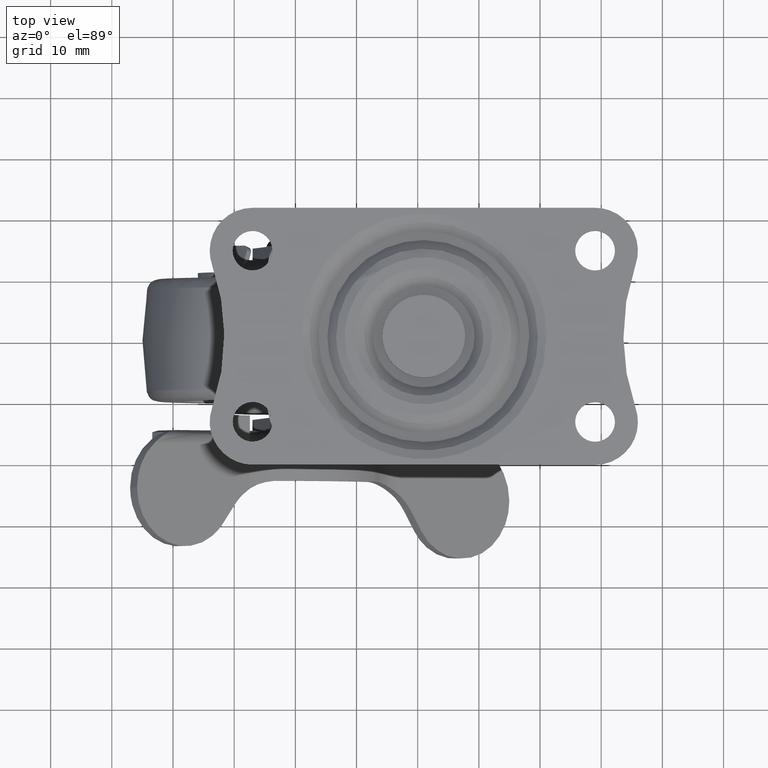
[diagram: clean part render]
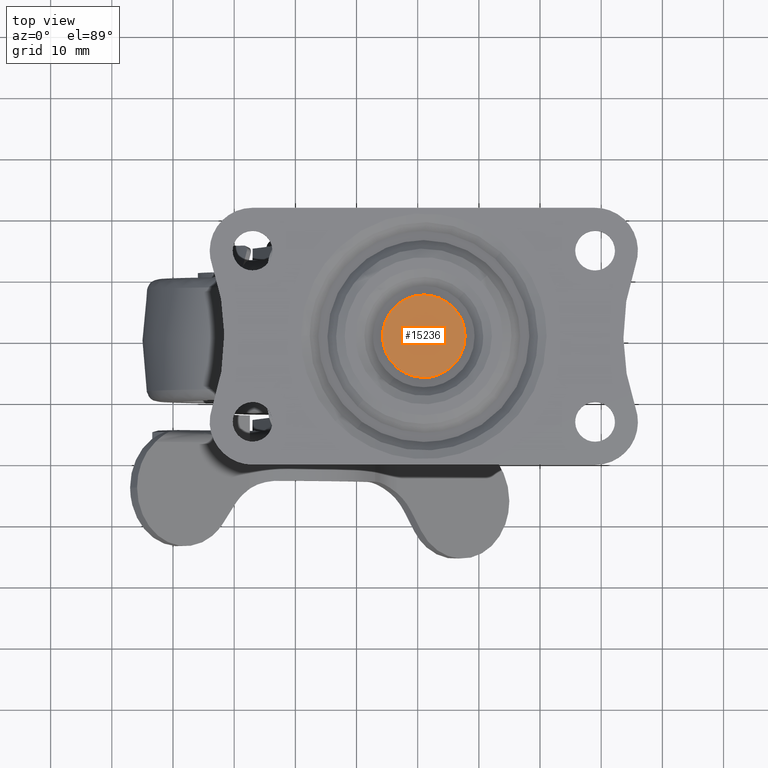
[diagram: same view with one face highlighted and labeled with its STEP entity id]
A machine part, top view. The second image highlights one B-rep face of the part: STEP entity #15236.
In plain terms, the highlighted face is a freeform B-spline surface patch.
Its self-contained STEP definition (entity closure, byte-faithful):
#14420=CARTESIAN_POINT('',(16.641240928317490,-5.154000789699762,40.0));
#14421=VERTEX_POINT('',#14420);
#14427=CARTESIAN_POINT('',(14.250000000000000,1.421085E-014,40.0));
#14428=VERTEX_POINT('',#14427);
#14429=CARTESIAN_POINT('',(16.641240928317490,-5.154000789699762,40.0));
#14430=CARTESIAN_POINT('',(16.314710635751830,-4.877902030336344,40.000000000000028));
#14431=CARTESIAN_POINT('',(15.692929208646630,-4.241430542744241,39.999999999999922));
#14432=CARTESIAN_POINT('',(14.872167660753220,-2.980583319897633,40.000000000000178));
#14433=CARTESIAN_POINT('',(14.359073330951690,-1.527223232333330,39.999999999999851));
#14434=CARTESIAN_POINT('',(14.249983259429090,-0.458147175200306,40.000000000000092));
#14435=CARTESIAN_POINT('',(14.250000000000000,1.421085E-014,40.0));
#14436=B_SPLINE_CURVE_WITH_KNOTS('',3,(#14429,#14430,#14431,#14432,#14433,#14434,#14435),.UNSPECIFIED.,.F.,.U.,(4,1,1,1,4),(0.000000045151192,1.282845981109632,2.657350218214928,4.489975278053346,5.864456024236506),.UNSPECIFIED.);
#14437=EDGE_CURVE('',#14421,#14428,#14436,.T.);
#14439=CARTESIAN_POINT('',(21.000001437793891,6.749999999999861,40.0));
#14440=VERTEX_POINT('',#14439);
#14441=CARTESIAN_POINT('',(14.250000000000000,1.421085E-014,40.0));
#14442=CARTESIAN_POINT('',(14.249616669910051,0.690350903864617,39.999999999999957));
#14443=CARTESIAN_POINT('',(14.399597457560350,1.656519912955270,40.000000000000149));
#14444=CARTESIAN_POINT('',(14.917367550844711,2.998660583675698,40.000000000000043));
#14445=CARTESIAN_POINT('',(15.567072480111500,4.098095905512048,39.999999999999787));
#14446=CARTESIAN_POINT('',(16.481282655039600,5.070105383113908,40.000000000000149));
#14447=CARTESIAN_POINT('',(17.491069384424069,5.799893395799360,39.999999999999979));
#14448=CARTESIAN_POINT('',(18.505995946396769,6.310807069625708,40.000000000000142));
#14449=CARTESIAN_POINT('',(19.702275084183320,6.665666082290328,39.999999999999929));
#14450=CARTESIAN_POINT('',(20.558214249690089,6.750057949887117,40.0));
#14451=CARTESIAN_POINT('',(21.000001437793891,6.749999999999861,40.0));
#14452=B_SPLINE_CURVE_WITH_KNOTS('',3,(#14441,#14442,#14443,#14444,#14445,#14446,#14447,#14448,#14449,#14450,#14451),.UNSPECIFIED.,.F.,.U.,(4,1,1,1,1,1,1,1,4),(0.000000137733107,2.070884080157674,2.899246179359994,4.307478157390871,5.881304572641057,6.875333967272873,8.035043685190678,9.277585008136056,10.602942544783330),.UNSPECIFIED.);
#14453=EDGE_CURVE('',#14428,#14440,#14452,.T.);
#14455=CARTESIAN_POINT('',(27.750000000000000,1.421085E-014,40.0));
#14456=VERTEX_POINT('',#14455);
#14457=CARTESIAN_POINT('',(21.000001437793891,6.749999999999861,40.0));
#14458=CARTESIAN_POINT('',(21.579853605416439,6.750164192111178,40.000000000000050));
#14459=CARTESIAN_POINT('',(22.739498571808770,6.599690379410438,40.0));
#14460=CARTESIAN_POINT('',(24.209337552802200,6.001414687995613,40.000000000000007));
#14461=CARTESIAN_POINT('',(25.461593527247459,5.130861648630334,40.000000000000057));
#14462=CARTESIAN_POINT('',(26.375757143743709,4.158833561313298,39.999999999999893));
#14463=CARTESIAN_POINT('',(27.029876288580819,3.097027253083099,40.000000000000107));
#14464=CARTESIAN_POINT('',(27.581003637486660,1.766936410963549,39.999999999999822));
#14465=CARTESIAN_POINT('',(27.750395738157660,0.717963652958597,39.999999999999957));
#14466=CARTESIAN_POINT('',(27.750000000000000,1.421085E-014,40.0));
#14467=B_SPLINE_CURVE_WITH_KNOTS('',3,(#14457,#14458,#14459,#14460,#14461,#14462,#14463,#14464,#14465,#14466),.UNSPECIFIED.,.F.,.U.,(4,1,1,1,1,1,1,4),(0.000000138233661,1.739535017338810,3.479106539897097,4.721628577716199,6.295465730933033,7.455189764320908,8.449221708728699,10.602940924044310),.UNSPECIFIED.);
#14468=EDGE_CURVE('',#14440,#14456,#14467,.T.);
#14470=CARTESIAN_POINT('',(25.896276793858242,-4.646393086257431,40.0));
#14471=VERTEX_POINT('',#14470);
#14472=CARTESIAN_POINT('',(27.750000000000000,1.421085E-014,40.0));
#14473=CARTESIAN_POINT('',(27.750250157461110,-0.640618119848230,40.000000000000078));
#14474=CARTESIAN_POINT('',(27.573922291035171,-1.868298035926433,39.999999999999687));
#14475=CARTESIAN_POINT('',(26.878970189192650,-3.444722279512824,40.000000000000647));
#14476=CARTESIAN_POINT('',(26.227032498335721,-4.297933576183629,39.999999999999567));
#14477=CARTESIAN_POINT('',(25.896276793858242,-4.646393086257431,40.0));
#14478=B_SPLINE_CURVE_WITH_KNOTS('',3,(#14472,#14473,#14474,#14475,#14476,#14477),.UNSPECIFIED.,.F.,.U.,(4,1,1,4),(0.000000035228886,1.921792212179253,3.683414395395154,5.124752854978498),.UNSPECIFIED.);
#14479=EDGE_CURVE('',#14456,#14471,#14478,.T.);
#14566=CARTESIAN_POINT('',(20.999998562206081,-6.749999999999833,40.0));
#14567=VERTEX_POINT('',#14566);
#14568=CARTESIAN_POINT('',(25.896276793858242,-4.646393086257431,40.0));
#14569=CARTESIAN_POINT('',(25.582077818997782,-4.977581895934080,39.999999999999950));
#14570=CARTESIAN_POINT('',(24.951350123695129,-5.519708666881797,40.000000000000163));
#14571=CARTESIAN_POINT('',(23.837378867952889,-6.166871800713909,39.999999999999943));
#14572=CARTESIAN_POINT('',(22.540671599381088,-6.629022252967947,39.999999999999801));
#14573=CARTESIAN_POINT('',(21.542122444665139,-6.750137496663916,40.000000000000192));
#14574=CARTESIAN_POINT('',(20.999998562206081,-6.749999999999833,40.0));
#14575=B_SPLINE_CURVE_WITH_KNOTS('',3,(#14568,#14569,#14570,#14571,#14572,#14573,#14574),.UNSPECIFIED.,.F.,.U.,(4,1,1,1,4),(0.000000037369555,1.369548120113723,2.482317730474385,3.851848156925631,5.478190256982669),.UNSPECIFIED.);
#14576=EDGE_CURVE('',#14471,#14567,#14575,.T.);
#14578=CARTESIAN_POINT('',(20.999998562206081,-6.749999999999833,40.0));
#14579=CARTESIAN_POINT('',(20.234846619934711,-6.750487394764150,40.000000000000163));
#14580=CARTESIAN_POINT('',(19.124634539765989,-6.559147113023265,39.999999999999773));
#14581=CARTESIAN_POINT('',(17.676151149188900,-5.917573206201558,40.000000000000341));
#14582=CARTESIAN_POINT('',(16.999238090984630,-5.456854873812046,39.999999999999801));
#14583=CARTESIAN_POINT('',(16.641240928317490,-5.154000789699762,40.0));
#14584=B_SPLINE_CURVE_WITH_KNOTS('',3,(#14578,#14579,#14580,#14581,#14582,#14583),.UNSPECIFIED.,.F.,.U.,(4,1,1,4),(0.000000027106972,2.295224314963972,3.331746850189337,4.738486801067609),.UNSPECIFIED.);
#14585=EDGE_CURVE('',#14567,#14421,#14584,.T.);
#15223=CARTESIAN_POINT('',(28.424324973834381,-7.424324973834199,40.0));
#15224=CARTESIAN_POINT('',(13.575674664067410,-7.424324973834199,40.0));
#15225=CARTESIAN_POINT('',(28.424324973834381,7.424325335932444,40.0));
#15226=CARTESIAN_POINT('',(13.575674664067410,7.424325335932444,40.0));
#15227=B_SPLINE_SURFACE_WITH_KNOTS('',1,1,((#15223,#15225),(#15224,#15226)),.UNSPECIFIED.,.F.,.F.,.U.,(2,2),(2,2),(0.0,14.848650309766979),(0.0,14.848650309766640),.UNSPECIFIED.);
#15228=ORIENTED_EDGE('',*,*,#14437,.F.);
#15229=ORIENTED_EDGE('',*,*,#14585,.F.);
#15230=ORIENTED_EDGE('',*,*,#14576,.F.);
#15231=ORIENTED_EDGE('',*,*,#14479,.F.);
#15232=ORIENTED_EDGE('',*,*,#14468,.F.);
#15233=ORIENTED_EDGE('',*,*,#14453,.F.);
#15234=EDGE_LOOP('',(#15228,#15229,#15230,#15231,#15232,#15233));
#15235=FACE_OUTER_BOUND('',#15234,.T.);
#15236=ADVANCED_FACE('',(#15235),#15227,.F.);